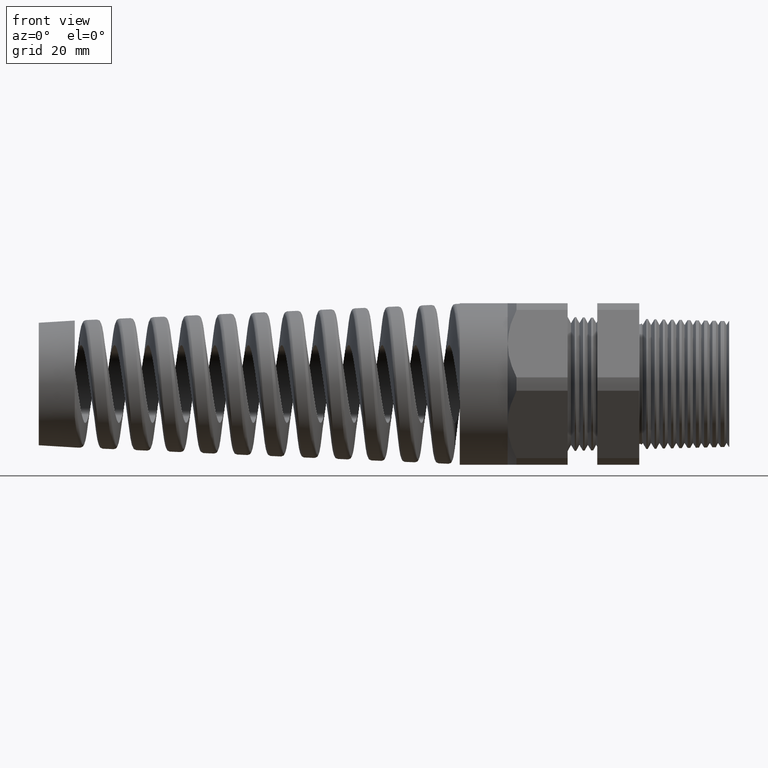
[diagram: clean part render]
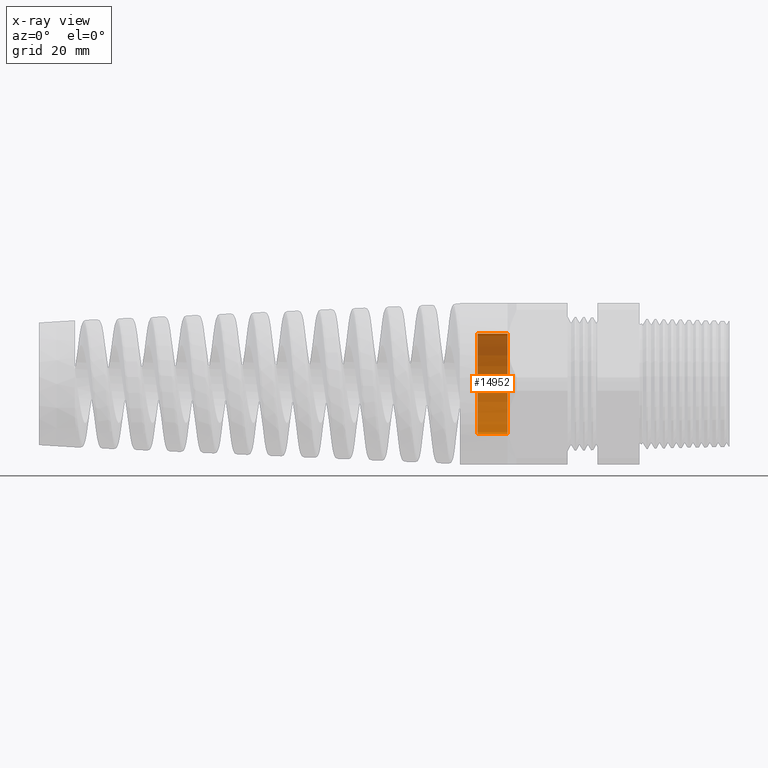
[diagram: x-ray — body ghosted, one internal face saturated and labeled with its STEP entity id]
A machine part, front view, then the same camera in x-ray: the body is ghosted and one INTERNAL B-rep face — a face not visible from any outside direction — is saturated and labeled: STEP entity #14952.
In plain terms, the highlighted cylindrical surface (partial cylindrical patch) has radius 8.382 mm, axis along (1, 0, 0).
Its self-contained STEP definition (entity closure, byte-faithful):
#11417 = DIRECTION ( 'NONE',  ( 1.000000000000000000, 0.0000000000000000000, 0.0000000000000000000 ) ) ;
#11418 = VECTOR ( 'NONE', #11417, 39.37007874015748100 ) ;
#11419 = CARTESIAN_POINT ( 'NONE',  ( 0.0000000000000000000, 0.0000000000000000000, -0.3300000000000000200 ) ) ;
#11420 = LINE ( 'NONE', #11419, #11418 ) ;
#11421 = CARTESIAN_POINT ( 'NONE',  ( -1.173779527559055200, 0.0000000000000000000, -0.3300000000000000200 ) ) ;
#11422 = DIRECTION ( 'NONE',  ( 0.0000000000000000000, 0.0000000000000000000, -1.000000000000000000 ) ) ;
#11423 = DIRECTION ( 'NONE',  ( 1.000000000000000000, 0.0000000000000000000, 0.0000000000000000000 ) ) ;
#11424 = CARTESIAN_POINT ( 'NONE',  ( -1.173779527559055200, 0.0000000000000000000, 0.0000000000000000000 ) ) ;
#11425 = AXIS2_PLACEMENT_3D ( 'NONE', #11424, #11423, #11422 ) ;
#11426 = CIRCLE ( 'NONE', #11425, 0.3300000000000000200 ) ;
#11427 = CARTESIAN_POINT ( 'NONE',  ( -1.173779527559055200, 4.041334437186265900E-017, 0.3300000000000000200 ) ) ;
#11428 = DIRECTION ( 'NONE',  ( 1.000000000000000000, 0.0000000000000000000, 0.0000000000000000000 ) ) ;
#11429 = VECTOR ( 'NONE', #11428, 39.37007874015748100 ) ;
#11430 = CARTESIAN_POINT ( 'NONE',  ( 0.0000000000000000000, 4.041334437186265900E-017, 0.3300000000000000200 ) ) ;
#11431 = LINE ( 'NONE', #11430, #11429 ) ;
#11432 = DIRECTION ( 'NONE',  ( 0.0000000000000000000, 0.0000000000000000000, -1.000000000000000000 ) ) ;
#11433 = DIRECTION ( 'NONE',  ( 1.000000000000000000, 0.0000000000000000000, 0.0000000000000000000 ) ) ;
#11434 = CARTESIAN_POINT ( 'NONE',  ( 0.0000000000000000000, 0.0000000000000000000, 0.0000000000000000000 ) ) ;
#11435 = AXIS2_PLACEMENT_3D ( 'NONE', #11434, #11433, #11432 ) ;
#11436 = CYLINDRICAL_SURFACE ( 'NONE', #11435, 0.3300000000000000200 ) ;
#11437 = FACE_OUTER_BOUND ( 'NONE', #14953, .T. ) ;
#11445 = CARTESIAN_POINT ( 'NONE',  ( -1.371000000000000000, 0.0000000000000000000, -0.3300000000000000200 ) ) ;
#11446 = DIRECTION ( 'NONE',  ( 0.0000000000000000000, 0.0000000000000000000, -1.000000000000000000 ) ) ;
#11447 = DIRECTION ( 'NONE',  ( 1.000000000000000000, 0.0000000000000000000, 0.0000000000000000000 ) ) ;
#11448 = CARTESIAN_POINT ( 'NONE',  ( -1.371000000000000000, 0.0000000000000000000, 0.0000000000000000000 ) ) ;
#11449 = AXIS2_PLACEMENT_3D ( 'NONE', #11448, #11447, #11446 ) ;
#11450 = CIRCLE ( 'NONE', #11449, 0.3300000000000000200 ) ;
#11451 = CARTESIAN_POINT ( 'NONE',  ( -1.371000000000000000, 4.041334437186265900E-017, 0.3300000000000000200 ) ) ;
#14952 = ADVANCED_FACE ( 'NONE', ( #11437 ), #11436, .T. ) ;
#14953 = EDGE_LOOP ( 'NONE', ( #14954, #14955, #14958, #14961 ) ) ;
#14954 = ORIENTED_EDGE ( 'NONE', *, *, #14977, .T. ) ;
#14955 = ORIENTED_EDGE ( 'NONE', *, *, #14956, .T. ) ;
#14956 = EDGE_CURVE ( 'NONE', #14975, #14957, #11431, .T. ) ;
#14957 = VERTEX_POINT ( 'NONE', #11427 ) ;
#14958 = ORIENTED_EDGE ( 'NONE', *, *, #14959, .F. ) ;
#14959 = EDGE_CURVE ( 'NONE', #14960, #14957, #11426, .T. ) ;
#14960 = VERTEX_POINT ( 'NONE', #11421 ) ;
#14961 = ORIENTED_EDGE ( 'NONE', *, *, #14962, .F. ) ;
#14962 = EDGE_CURVE ( 'NONE', #14978, #14960, #11420, .T. ) ;
#14975 = VERTEX_POINT ( 'NONE', #11451 ) ;
#14977 = EDGE_CURVE ( 'NONE', #14978, #14975, #11450, .T. ) ;
#14978 = VERTEX_POINT ( 'NONE', #11445 ) ;